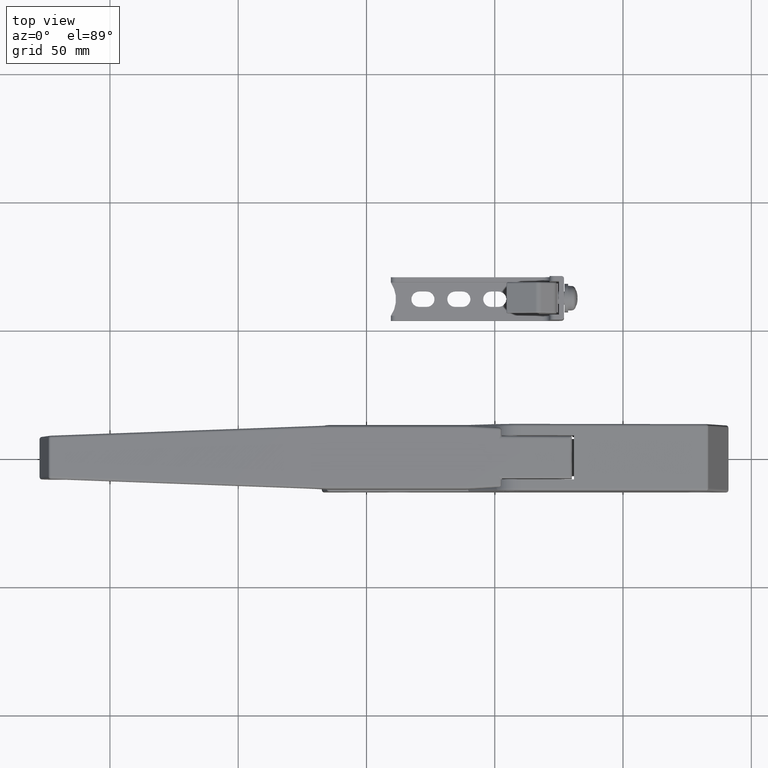
[diagram: clean part render]
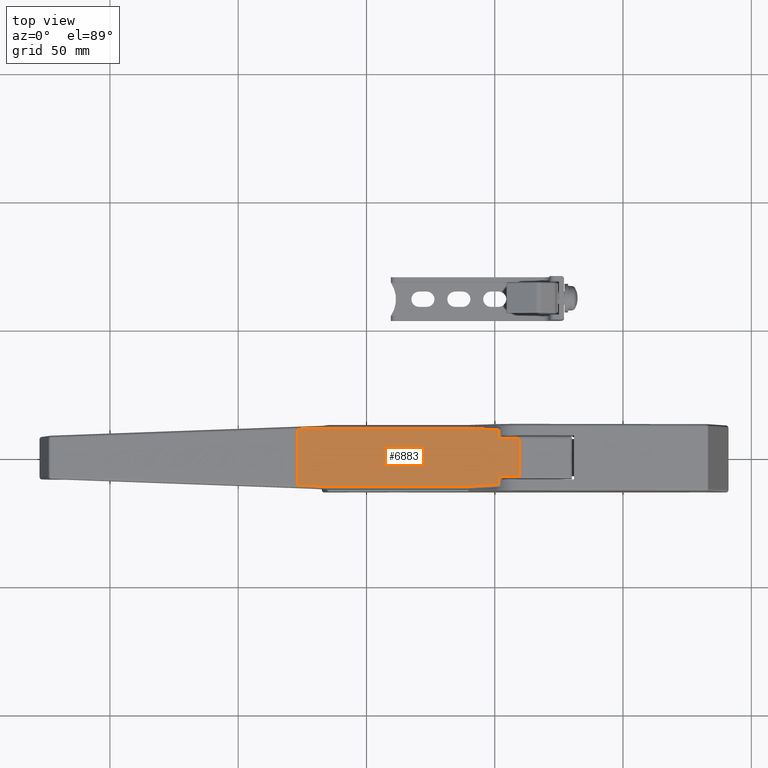
[diagram: same view with one face highlighted and labeled with its STEP entity id]
A machine part, top view. The second image highlights one B-rep face of the part: STEP entity #6883.
In plain terms, the highlighted planar face has unit normal (0, -0, 1).
Its self-contained STEP definition (entity closure, byte-faithful):
#204=PLANE('',#7360);
#465=FACE_OUTER_BOUND('',#903,.T.);
#903=EDGE_LOOP('',(#4803,#4804,#4805,#4806,#4807,#4808,#4809,#4810,#4811,
#4812,#4813,#4814));
#1718=LINE('',#10315,#2357);
#1736=LINE('',#10412,#2375);
#1737=LINE('',#10423,#2376);
#1760=LINE('',#10491,#2399);
#1762=LINE('',#10495,#2401);
#1763=LINE('',#10497,#2402);
#1764=LINE('',#10499,#2403);
#1765=LINE('',#10500,#2404);
#1766=LINE('',#10502,#2405);
#1767=LINE('',#10504,#2406);
#1768=LINE('',#10506,#2407);
#1769=LINE('',#10507,#2408);
#2357=VECTOR('',#8103,8.14783197699208);
#2375=VECTOR('',#8161,8.14783197699208);
#2376=VECTOR('',#8178,14.7);
#2399=VECTOR('',#8235,21.7954893773);
#2401=VECTOR('',#8239,3.26571627597327);
#2402=VECTOR('',#8240,12.1153411295121);
#2403=VECTOR('',#8241,54.7219753362401);
#2404=VECTOR('',#8242,11.6464671863443);
#2405=VECTOR('',#8243,11.6464671863444);
#2406=VECTOR('',#8244,54.72197533624);
#2407=VECTOR('',#8245,12.1153411303921);
#2408=VECTOR('',#8246,3.26571627719421);
#3041=VERTEX_POINT('',#10307);
#3043=VERTEX_POINT('',#10313);
#3056=VERTEX_POINT('',#10366);
#3073=VERTEX_POINT('',#10411);
#3102=VERTEX_POINT('',#10488);
#3103=VERTEX_POINT('',#10490);
#3104=VERTEX_POINT('',#10494);
#3105=VERTEX_POINT('',#10496);
#3106=VERTEX_POINT('',#10498);
#3107=VERTEX_POINT('',#10501);
#3108=VERTEX_POINT('',#10503);
#3109=VERTEX_POINT('',#10505);
#3678=EDGE_CURVE('',#3043,#3041,#1718,.T.);
#3712=EDGE_CURVE('',#3056,#3073,#1736,.T.);
#3718=EDGE_CURVE('',#3073,#3043,#1737,.T.);
#3751=EDGE_CURVE('',#3103,#3102,#1760,.T.);
#3753=EDGE_CURVE('',#3104,#3056,#1762,.T.);
#3754=EDGE_CURVE('',#3105,#3104,#1763,.T.);
#3755=EDGE_CURVE('',#3105,#3106,#1764,.T.);
#3756=EDGE_CURVE('',#3106,#3103,#1765,.T.);
#3757=EDGE_CURVE('',#3102,#3107,#1766,.T.);
#3758=EDGE_CURVE('',#3107,#3108,#1767,.T.);
#3759=EDGE_CURVE('',#3109,#3108,#1768,.T.);
#3760=EDGE_CURVE('',#3109,#3041,#1769,.T.);
#4803=ORIENTED_EDGE('',*,*,#3718,.F.);
#4804=ORIENTED_EDGE('',*,*,#3712,.F.);
#4805=ORIENTED_EDGE('',*,*,#3753,.F.);
#4806=ORIENTED_EDGE('',*,*,#3754,.F.);
#4807=ORIENTED_EDGE('',*,*,#3755,.T.);
#4808=ORIENTED_EDGE('',*,*,#3756,.T.);
#4809=ORIENTED_EDGE('',*,*,#3751,.T.);
#4810=ORIENTED_EDGE('',*,*,#3757,.T.);
#4811=ORIENTED_EDGE('',*,*,#3758,.T.);
#4812=ORIENTED_EDGE('',*,*,#3759,.F.);
#4813=ORIENTED_EDGE('',*,*,#3760,.T.);
#4814=ORIENTED_EDGE('',*,*,#3678,.F.);
#6883=ADVANCED_FACE('',(#465),#204,.T.);
#7360=AXIS2_PLACEMENT_3D('',#10493,#8237,#8238);
#8103=DIRECTION('',(0.,1.,0.));
#8161=DIRECTION('',(0.,-1.,0.));
#8178=DIRECTION('',(1.,0.,0.));
#8235=DIRECTION('',(1.,0.,0.));
#8237=DIRECTION('center_axis',(0.,0.,-1.));
#8238=DIRECTION('ref_axis',(0.,1.,0.));
#8239=DIRECTION('',(1.,-1.053725144138E-10,0.));
#8240=DIRECTION('',(0.0579814911575908,-0.998317658204613,-5.19036437743407E-14));
#8241=DIRECTION('',(-5.937821228243E-10,1.,-1.149136724058E-14));
#8242=DIRECTION('',(0.0360999711581895,0.999348183608885,0.));
#8243=DIRECTION('',(0.0360999711581895,-0.999348183608885,0.));
#8244=DIRECTION('',(0.,-1.,0.));
#8245=DIRECTION('',(0.0579814907544217,0.998317658228029,0.));
#8246=DIRECTION('',(-1.,-1.453649572434E-10,0.));
#10307=CARTESIAN_POINT('',(7.35,4.664996273871,-9.298827761423));
#10313=CARTESIAN_POINT('',(7.35,-3.48283570312108,-9.298827761423));
#10315=CARTESIAN_POINT('',(7.35,-3.663233965288,-9.298827761423));
#10366=CARTESIAN_POINT('',(-7.35,4.664996273871,-9.298827761423));
#10411=CARTESIAN_POINT('',(-7.35,-3.48283570312108,-9.298827761423));
#10412=CARTESIAN_POINT('',(-7.35,4.664996273871,-9.298827761423));
#10423=CARTESIAN_POINT('',(-27.565,-3.48283570312108,-9.298827761423));
#10488=CARTESIAN_POINT('',(10.89774468865,83.1208064241934,-9.2988277365949));
#10490=CARTESIAN_POINT('',(-10.89774468865,83.1208064241934,-9.29882773659481));
#10491=CARTESIAN_POINT('',(-10.89774468865,83.12080642441,-9.298827761423));
#10493=CARTESIAN_POINT('Origin',(-27.565,-3.663233965288,-9.298827761423));
#10494=CARTESIAN_POINT('',(-10.6157162759733,4.66499627400411,-9.29882776142291));
#10495=CARTESIAN_POINT('',(-10.61571627356,4.664996274216,-9.298827761423));
#10496=CARTESIAN_POINT('',(-11.3181818024441,16.7599552598199,-9.2988277614225));
#10497=CARTESIAN_POINT('',(-11.31818178569,16.75995470036,-9.298827761422));
#10498=CARTESIAN_POINT('',(-11.31818181818,71.48193059606,-9.298827761423));
#10499=CARTESIAN_POINT('',(-11.31818178569,16.75995470036,-9.298827761422));
#10500=CARTESIAN_POINT('',(-11.31818181818,71.48193059606,-9.298827761423));
#10501=CARTESIAN_POINT('',(11.31818181818,71.48193059606,-9.298827761423));
#10502=CARTESIAN_POINT('',(10.89774468865,83.12080642441,-9.298827761423));
#10503=CARTESIAN_POINT('',(11.31818181818,16.75995525982,-9.298827761423));
#10504=CARTESIAN_POINT('',(11.31818181818,71.48193059606,-9.298827761423));
#10505=CARTESIAN_POINT('',(10.6157162771942,4.66499627396569,-9.298827761423));
#10506=CARTESIAN_POINT('',(10.61571627847,4.664996274346,-9.298827761423));
#10507=CARTESIAN_POINT('',(10.61571627847,4.664996274346,-9.298827761423));